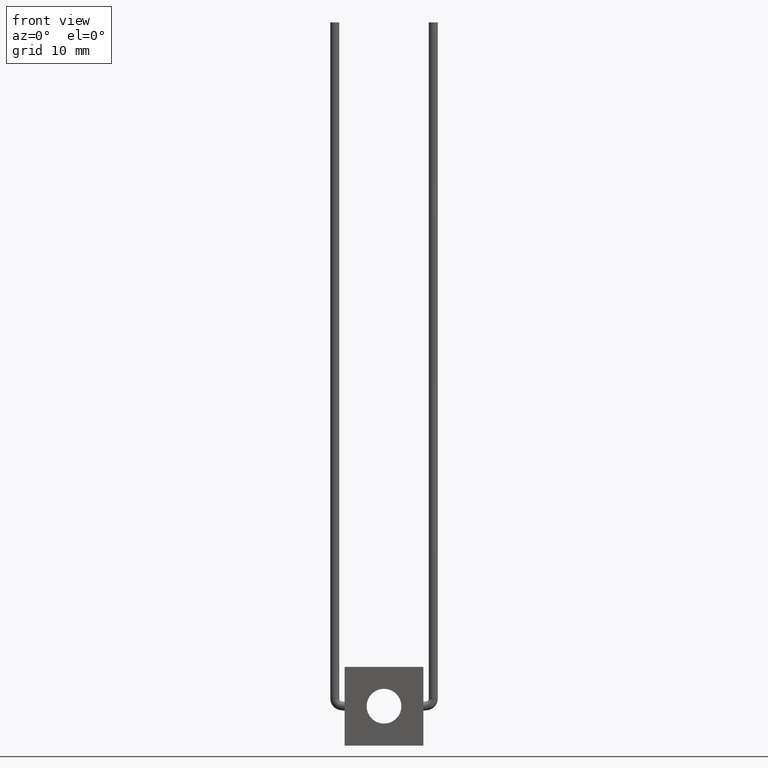
[diagram: clean part render]
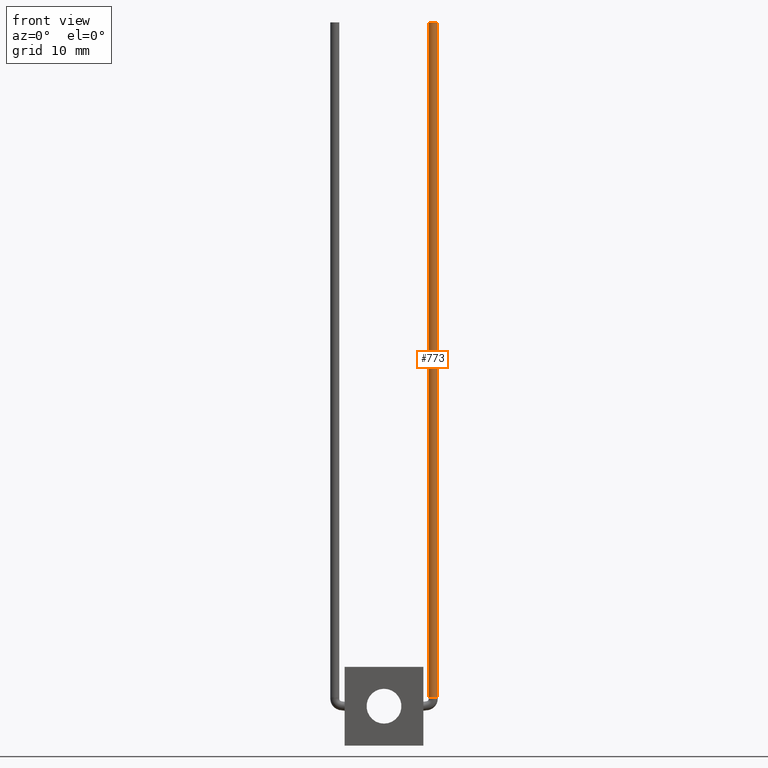
[diagram: same view with one face highlighted and labeled with its STEP entity id]
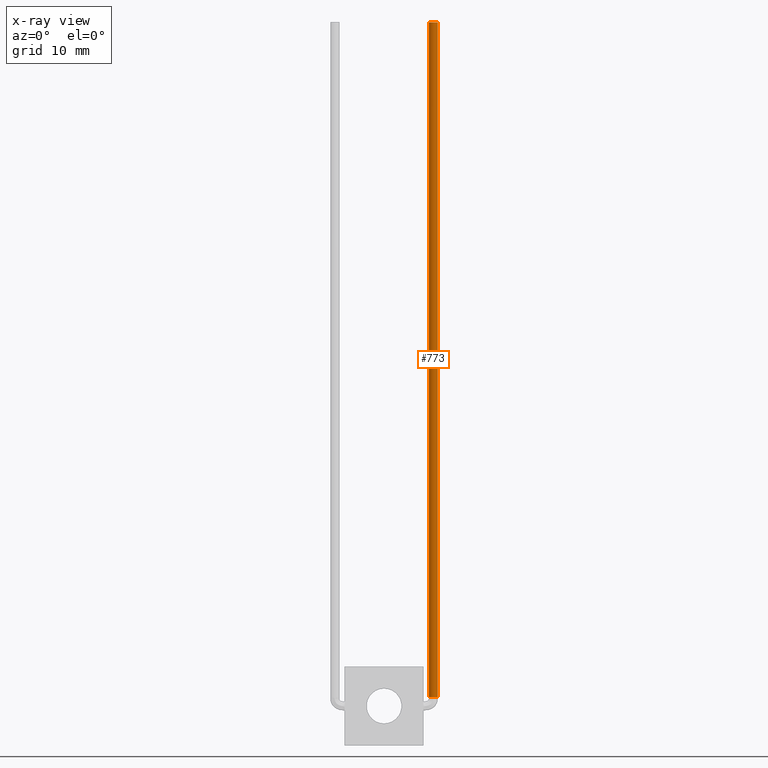
[diagram: x-ray of the same camera — body ghosted, the highlighted face saturated]
A machine part, front view. The second image highlights one B-rep face of the part: STEP entity #773.
The next image is the same camera in x-ray: the body ghosted, the highlighted face saturated — about 0% of this face is hidden behind the body in this view.
In plain terms, the highlighted face is a freeform B-spline surface patch.
Its self-contained STEP definition (entity closure, byte-faithful):
#41 =( BOUNDED_CURVE ( )  B_SPLINE_CURVE ( 3, ( #653, #1008, #395, #499 ),
 .UNSPECIFIED., .F., .F. ) 
 B_SPLINE_CURVE_WITH_KNOTS ( ( 4, 4 ),
 ( 0.4999999999999997800, 1.000000000000000000 ),
 .UNSPECIFIED. ) 
 CURVE ( )  GEOMETRIC_REPRESENTATION_ITEM ( )  RATIONAL_B_SPLINE_CURVE ( ( 1.000000000000000200, 0.3333333333333333700, 0.3333333333333330900, 1.000000000000000000 ) ) 
 REPRESENTATION_ITEM ( '' )  );
#79 =( BOUNDED_SURFACE ( )  B_SPLINE_SURFACE ( 3, 1, ( 
 ( #498, #388 ),
 ( #1076, #378 ),
 ( #748, #411 ),
 ( #1217, #504 ),
 ( #263, #717 ),
 ( #289, #254 ),
 ( #1054, #374 ) ),
 .UNSPECIFIED., .T., .F., .T. ) 
 B_SPLINE_SURFACE_WITH_KNOTS ( ( 4, 3, 4 ),
 ( 2, 2 ),
 ( 0.0000000000000000000, 0.5000000000000000000, 1.000000000000000000 ),
 ( 0.0000000000000000000, 1.000000000000000000 ),
 .UNSPECIFIED. ) 
 GEOMETRIC_REPRESENTATION_ITEM ( )  RATIONAL_B_SPLINE_SURFACE ( (
 ( 1.000000000000000000, 1.000000000000000000),
 ( 0.3333333333333333700, 0.3333333333333333700),
 ( 0.3333333333333333700, 0.3333333333333333700),
 ( 1.000000000000000000, 1.000000000000000000),
 ( 0.3333333333333333700, 0.3333333333333333700),
 ( 0.3333333333333333700, 0.3333333333333333700),
 ( 1.000000000000000000, 1.000000000000000000) ) ) 
 REPRESENTATION_ITEM ( '' )  SURFACE ( )  );
#103 = EDGE_CURVE ( 'NONE', #481, #602, #41, .T. ) ;
#254 = CARTESIAN_POINT ( 'NONE',  ( 4.776752074615891400, 1.800000000000000000, 60.79300799953329500 ) ) ;
#263 = CARTESIAN_POINT ( 'NONE',  ( 3.977081048301006400, 1.800000000000000000, 0.7806951237650886500 ) ) ;
#289 = CARTESIAN_POINT ( 'NONE',  ( 4.776752074615883400, 1.800000000000000000, 0.8053208753015148600 ) ) ;
#313 = B_SPLINE_CURVE_WITH_KNOTS ( 'NONE', 1,
 ( #954, #969 ),
 .UNSPECIFIED., .F., .F.,
 ( 2, 2 ),
 ( 0.0000000000000000000, 1.000000000000000000 ),
 .UNSPECIFIED. ) ;
#374 = CARTESIAN_POINT ( 'NONE',  ( 4.776752074615891400, 1.000000000000000000, 60.79300799953330200 ) ) ;
#378 = CARTESIAN_POINT ( 'NONE',  ( 4.776752074615891400, 0.2000000000000000900, 60.79300799953329500 ) ) ;
#388 = CARTESIAN_POINT ( 'NONE',  ( 4.776752074615891400, 1.000000000000000000, 60.79300799953330200 ) ) ;
#395 = CARTESIAN_POINT ( 'NONE',  ( 4.776752074615890500, 0.1999999999999990100, 60.79300799953329500 ) ) ;
#411 = CARTESIAN_POINT ( 'NONE',  ( 3.977081048301012600, 0.2000000000000000900, 60.79300799953329500 ) ) ;
#481 = VERTEX_POINT ( 'NONE', #511 ) ;
#498 = CARTESIAN_POINT ( 'NONE',  ( 4.776752074615883400, 1.000000000000000000, 0.8053208753015148600 ) ) ;
#499 = CARTESIAN_POINT ( 'NONE',  ( 4.776752074615891400, 1.000000000000000000, 60.79300799953330200 ) ) ;
#504 = CARTESIAN_POINT ( 'NONE',  ( 3.977081048301013900, 1.000000000000000000, 60.79300799953330200 ) ) ;
#511 = CARTESIAN_POINT ( 'NONE',  ( 3.977081048301013900, 1.000000000000000000, 60.79300799953330200 ) ) ;
#520 = CARTESIAN_POINT ( 'NONE',  ( 3.977081048301005900, 1.000000000000000000, 0.7806951237650886500 ) ) ;
#526 = CARTESIAN_POINT ( 'NONE',  ( 3.977081048301004600, 0.2000000000000001500, 0.7806951237650886500 ) ) ;
#555 = CARTESIAN_POINT ( 'NONE',  ( 4.776752074615884200, 0.1999999999999995700, 0.8053208753015149700 ) ) ;
#585 = FACE_OUTER_BOUND ( 'NONE', #800, .T. ) ;
#602 = VERTEX_POINT ( 'NONE', #617 ) ;
#617 = CARTESIAN_POINT ( 'NONE',  ( 4.776752074615891400, 1.000000000000000000, 60.79300799953330200 ) ) ;
#629 = CARTESIAN_POINT ( 'NONE',  ( 4.776752074615883400, 1.000000000000000000, 0.8053208753015148600 ) ) ;
#631 = ORIENTED_EDGE ( 'NONE', *, *, #994, .F. ) ;
#653 = CARTESIAN_POINT ( 'NONE',  ( 3.977081048301013900, 1.000000000000000000, 60.79300799953330200 ) ) ;
#717 = CARTESIAN_POINT ( 'NONE',  ( 3.977081048301013900, 1.800000000000000000, 60.79300799953329500 ) ) ;
#721 = ORIENTED_EDGE ( 'NONE', *, *, #103, .F. ) ;
#748 = CARTESIAN_POINT ( 'NONE',  ( 3.977081048301005100, 0.2000000000000000900, 0.7806951237650886500 ) ) ;
#758 = VERTEX_POINT ( 'NONE', #1127 ) ;
#761 = ORIENTED_EDGE ( 'NONE', *, *, #1240, .F. ) ;
#766 = CARTESIAN_POINT ( 'NONE',  ( 4.776752074615891400, 1.000000000000000000, 60.79300799953330200 ) ) ;
#773 = ADVANCED_FACE ( 'NONE', ( #585 ), #79, .F. ) ;
#800 = EDGE_LOOP ( 'NONE', ( #631, #761, #1181, #721 ) ) ;
#823 = CARTESIAN_POINT ( 'NONE',  ( 4.776752074615883400, 1.000000000000000000, 0.8053208753015148600 ) ) ;
#832 = EDGE_CURVE ( 'NONE', #758, #602, #956, .T. ) ;
#954 = CARTESIAN_POINT ( 'NONE',  ( 3.977081048301005900, 1.000000000000000000, 0.7806951237650886500 ) ) ;
#956 = B_SPLINE_CURVE_WITH_KNOTS ( 'NONE', 1,
 ( #823, #766 ),
 .UNSPECIFIED., .F., .F.,
 ( 2, 2 ),
 ( 0.0000000000000000000, 1.000000000000000000 ),
 .UNSPECIFIED. ) ;
#969 = CARTESIAN_POINT ( 'NONE',  ( 3.977081048301013900, 1.000000000000000000, 60.79300799953330200 ) ) ;
#989 =( BOUNDED_CURVE ( )  B_SPLINE_CURVE ( 3, ( #629, #555, #526, #520 ),
 .UNSPECIFIED., .F., .F. ) 
 B_SPLINE_CURVE_WITH_KNOTS ( ( 4, 4 ),
 ( 0.0000000000000000000, 0.5000000000000001100 ),
 .UNSPECIFIED. ) 
 CURVE ( )  GEOMETRIC_REPRESENTATION_ITEM ( )  RATIONAL_B_SPLINE_CURVE ( ( 1.000000000000000000, 0.3333333333333332000, 0.3333333333333333700, 1.000000000000000200 ) ) 
 REPRESENTATION_ITEM ( '' )  );
#994 = EDGE_CURVE ( 'NONE', #1191, #481, #313, .T. ) ;
#1008 = CARTESIAN_POINT ( 'NONE',  ( 3.977081048301013100, 0.2000000000000001500, 60.79300799953330900 ) ) ;
#1041 = CARTESIAN_POINT ( 'NONE',  ( 3.977081048301005900, 1.000000000000000000, 0.7806951237650886500 ) ) ;
#1054 = CARTESIAN_POINT ( 'NONE',  ( 4.776752074615883400, 1.000000000000000000, 0.8053208753015148600 ) ) ;
#1076 = CARTESIAN_POINT ( 'NONE',  ( 4.776752074615883400, 0.2000000000000000900, 0.8053208753015148600 ) ) ;
#1127 = CARTESIAN_POINT ( 'NONE',  ( 4.776752074615883400, 1.000000000000000000, 0.8053208753015148600 ) ) ;
#1181 = ORIENTED_EDGE ( 'NONE', *, *, #832, .T. ) ;
#1191 = VERTEX_POINT ( 'NONE', #1041 ) ;
#1217 = CARTESIAN_POINT ( 'NONE',  ( 3.977081048301005900, 1.000000000000000000, 0.7806951237650886500 ) ) ;
#1240 = EDGE_CURVE ( 'NONE', #758, #1191, #989, .T. ) ;